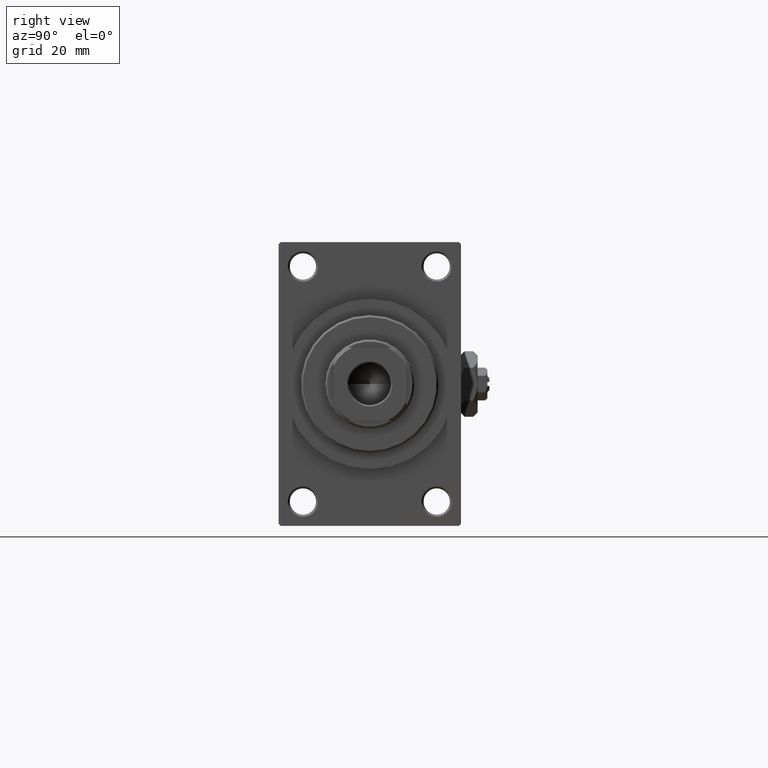
[diagram: clean part render]
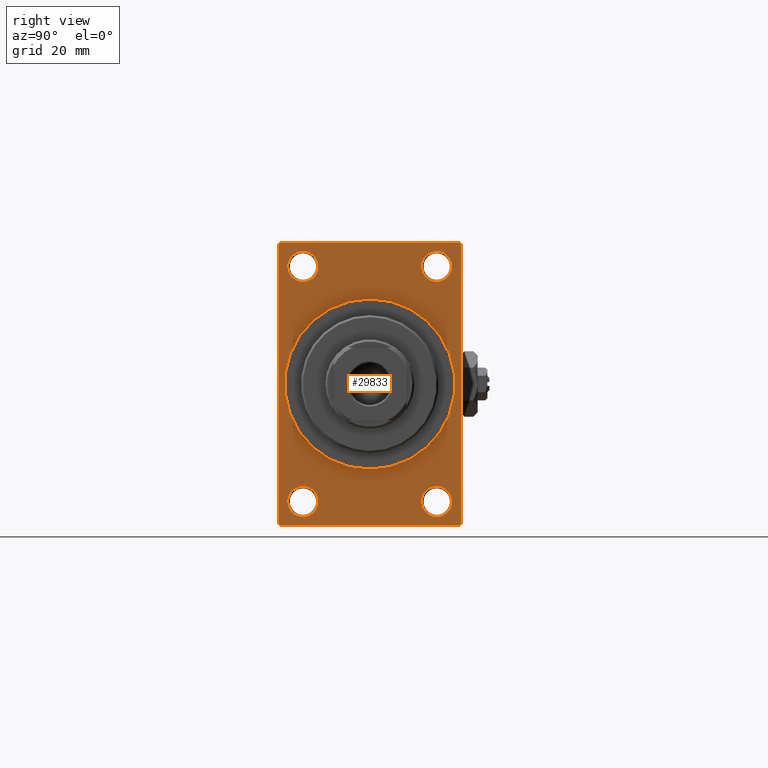
[diagram: same view with one face highlighted and labeled with its STEP entity id]
A machine part, right view. The second image highlights one B-rep face of the part: STEP entity #29833.
In plain terms, the highlighted planar face has unit normal (-1, 0, 0).
Its self-contained STEP definition (entity closure, byte-faithful):
#54 = CARTESIAN_POINT ( 'NONE',  ( 113.0000000000000142, -16.50000000000000000, -32.75000000000007105 ) ) ;
#1103 = LINE ( 'NONE', #8499, #28420 ) ;
#1828 = DIRECTION ( 'NONE',  ( 1.000000000000000000, 0.000000000000000000, 0.000000000000000000 ) ) ;
#2083 = ORIENTED_EDGE ( 'NONE', *, *, #37617, .T. ) ;
#2571 = EDGE_CURVE ( 'NONE', #26185, #15799, #22630, .T. ) ;
#3128 = DIRECTION ( 'NONE',  ( 0.000000000000000000, 0.000000000000000000, 1.000000000000000000 ) ) ;
#3483 = VERTEX_POINT ( 'NONE', #27181 ) ;
#3810 = AXIS2_PLACEMENT_3D ( 'NONE', #35055, #31342, #3128 ) ;
#4044 = CARTESIAN_POINT ( 'NONE',  ( 113.0000000000000142, 16.50000000000000000, -28.99999999999999289 ) ) ;
#4666 = EDGE_CURVE ( 'NONE', #21933, #42696, #42468, .T. ) ;
#4974 = EDGE_CURVE ( 'NONE', #25891, #12410, #40882, .T. ) ;
#5018 = DIRECTION ( 'NONE',  ( -1.000000000000000000, -0.000000000000000000, -0.000000000000000000 ) ) ;
#5211 = CARTESIAN_POINT ( 'NONE',  ( 113.0000000000000142, 16.50000000000000000, -28.99999999999999289 ) ) ;
#5325 = ORIENTED_EDGE ( 'NONE', *, *, #2571, .F. ) ;
#5639 = DIRECTION ( 'NONE',  ( 0.000000000000000000, -1.000000000000000000, 0.000000000000000000 ) ) ;
#6078 = CARTESIAN_POINT ( 'NONE',  ( 113.0000000000000142, 2.571758278209441661E-15, -21.00000000000000000 ) ) ;
#6099 = EDGE_CURVE ( 'NONE', #42696, #21933, #38543, .T. ) ;
#7235 = ORIENTED_EDGE ( 'NONE', *, *, #41849, .T. ) ;
#7708 = EDGE_CURVE ( 'NONE', #3483, #40909, #19552, .T. ) ;
#8270 = LINE ( 'NONE', #45104, #43570 ) ;
#8499 = CARTESIAN_POINT ( 'NONE',  ( 113.0000000000000142, 22.49999999999999645, -34.50000000000000000 ) ) ;
#8795 = CARTESIAN_POINT ( 'NONE',  ( 113.0000000000000142, -16.50000000000000000, -28.99999999999999289 ) ) ;
#8837 = EDGE_CURVE ( 'NONE', #21409, #28181, #28895, .T. ) ;
#9337 = AXIS2_PLACEMENT_3D ( 'NONE', #28458, #43560, #24771 ) ;
#9624 = FACE_BOUND ( 'NONE', #47863, .T. ) ;
#9846 = DIRECTION ( 'NONE',  ( 0.000000000000000000, 0.000000000000000000, 1.000000000000000000 ) ) ;
#10346 = VECTOR ( 'NONE', #11052, 1000.000000000000114 ) ;
#10484 = VECTOR ( 'NONE', #5639, 1000.000000000000000 ) ;
#11052 = DIRECTION ( 'NONE',  ( -0.000000000000000000, -0.7071067811865474617, -0.7071067811865474617 ) ) ;
#11243 = DIRECTION ( 'NONE',  ( 0.000000000000000000, 0.000000000000000000, -1.000000000000000000 ) ) ;
#11634 = CARTESIAN_POINT ( 'NONE',  ( 113.0000000000000142, -22.50000000000000355, -34.49999999999997158 ) ) ;
#12080 = AXIS2_PLACEMENT_3D ( 'NONE', #5211, #27915, #23989 ) ;
#12410 = VERTEX_POINT ( 'NONE', #45703 ) ;
#13106 = DIRECTION ( 'NONE',  ( 0.000000000000000000, 0.7071067811865376918, -0.7071067811865574537 ) ) ;
#13438 = EDGE_CURVE ( 'NONE', #40145, #23898, #1103, .T. ) ;
#13790 = CARTESIAN_POINT ( 'NONE',  ( 113.0000000000000142, 16.50000000000000000, 29.00000000000000355 ) ) ;
#13995 = ORIENTED_EDGE ( 'NONE', *, *, #7708, .T. ) ;
#14139 = ORIENTED_EDGE ( 'NONE', *, *, #23434, .T. ) ;
#14158 = VERTEX_POINT ( 'NONE', #26122 ) ;
#14238 = ORIENTED_EDGE ( 'NONE', *, *, #22991, .T. ) ;
#14290 = DIRECTION ( 'NONE',  ( 0.000000000000000000, 0.000000000000000000, 1.000000000000000000 ) ) ;
#14376 = AXIS2_PLACEMENT_3D ( 'NONE', #47666, #25164, #14290 ) ;
#14751 = CARTESIAN_POINT ( 'NONE',  ( 113.0000000000000142, -22.50000000000000355, 34.50000000000000000 ) ) ;
#14872 = CARTESIAN_POINT ( 'NONE',  ( 113.0000000000000142, -16.50000000000000000, 32.75000000000007816 ) ) ;
#15600 = AXIS2_PLACEMENT_3D ( 'NONE', #42081, #5018, #30952 ) ;
#15668 = EDGE_CURVE ( 'NONE', #36716, #25115, #48606, .T. ) ;
#15799 = VERTEX_POINT ( 'NONE', #6078 ) ;
#16119 = EDGE_CURVE ( 'NONE', #15799, #26185, #45872, .T. ) ;
#16131 = CARTESIAN_POINT ( 'NONE',  ( 113.0000000000000142, 22.49999999999999645, -34.50000000000000000 ) ) ;
#16897 = DIRECTION ( 'NONE',  ( 0.000000000000000000, 0.000000000000000000, -1.000000000000000000 ) ) ;
#17013 = DIRECTION ( 'NONE',  ( -1.000000000000000000, -0.000000000000000000, -0.000000000000000000 ) ) ;
#17229 = CARTESIAN_POINT ( 'NONE',  ( 113.0000000000000142, 21.99999999999999645, 35.00000000000000000 ) ) ;
#17628 = EDGE_CURVE ( 'NONE', #14158, #20694, #24630, .T. ) ;
#18397 = CIRCLE ( 'NONE', #12080, 3.750000000000076383 ) ;
#18860 = DIRECTION ( 'NONE',  ( -1.000000000000000000, -0.000000000000000000, -0.000000000000000000 ) ) ;
#19533 = ORIENTED_EDGE ( 'NONE', *, *, #38532, .F. ) ;
#19552 = CIRCLE ( 'NONE', #15600, 3.750000000000076383 ) ;
#19554 = AXIS2_PLACEMENT_3D ( 'NONE', #4044, #18860, #22332 ) ;
#19715 = CARTESIAN_POINT ( 'NONE',  ( 113.0000000000000142, 0.000000000000000000, 0.000000000000000000 ) ) ;
#20020 = FACE_OUTER_BOUND ( 'NONE', #31333, .T. ) ;
#20275 = CARTESIAN_POINT ( 'NONE',  ( 113.0000000000000142, 0.000000000000000000, 21.00000000000000000 ) ) ;
#20694 = VERTEX_POINT ( 'NONE', #31329 ) ;
#20740 = FACE_BOUND ( 'NONE', #45653, .T. ) ;
#21075 = AXIS2_PLACEMENT_3D ( 'NONE', #19715, #34787, #38496 ) ;
#21409 = VERTEX_POINT ( 'NONE', #11634 ) ;
#21933 = VERTEX_POINT ( 'NONE', #35644 ) ;
#22332 = DIRECTION ( 'NONE',  ( 0.000000000000000000, 0.000000000000000000, 1.000000000000000000 ) ) ;
#22406 = VECTOR ( 'NONE', #42276, 1000.000000000000114 ) ;
#22630 = CIRCLE ( 'NONE', #21075, 21.00000000000000000 ) ;
#22672 = EDGE_LOOP ( 'NONE', ( #14238, #33873 ) ) ;
#22991 = EDGE_CURVE ( 'NONE', #12410, #25891, #18397, .T. ) ;
#22995 = LINE ( 'NONE', #45491, #22406 ) ;
#23434 = EDGE_CURVE ( 'NONE', #40909, #3483, #26275, .T. ) ;
#23719 = FACE_BOUND ( 'NONE', #22672, .T. ) ;
#23871 = VECTOR ( 'NONE', #31131, 1000.000000000000000 ) ;
#23898 = VERTEX_POINT ( 'NONE', #16131 ) ;
#23989 = DIRECTION ( 'NONE',  ( 0.000000000000000000, 0.000000000000000000, 1.000000000000000000 ) ) ;
#24075 = ORIENTED_EDGE ( 'NONE', *, *, #17628, .T. ) ;
#24350 = CARTESIAN_POINT ( 'NONE',  ( 113.0000000000000142, -21.99999999999998934, 35.00000000000000000 ) ) ;
#24546 = CARTESIAN_POINT ( 'NONE',  ( 113.0000000000000142, 0.000000000000000000, 0.000000000000000000 ) ) ;
#24630 = CIRCLE ( 'NONE', #14376, 3.750000000000072831 ) ;
#24771 = DIRECTION ( 'NONE',  ( 0.000000000000000000, 0.000000000000000000, 1.000000000000000000 ) ) ;
#25115 = VERTEX_POINT ( 'NONE', #29437 ) ;
#25164 = DIRECTION ( 'NONE',  ( -1.000000000000000000, -0.000000000000000000, -0.000000000000000000 ) ) ;
#25212 = EDGE_CURVE ( 'NONE', #40703, #48575, #22995, .T. ) ;
#25891 = VERTEX_POINT ( 'NONE', #28267 ) ;
#26122 = CARTESIAN_POINT ( 'NONE',  ( 113.0000000000000142, 16.50000000000000000, 25.24999999999993250 ) ) ;
#26185 = VERTEX_POINT ( 'NONE', #20275 ) ;
#26275 = CIRCLE ( 'NONE', #35736, 3.750000000000076383 ) ;
#26711 = CARTESIAN_POINT ( 'NONE',  ( 113.0000000000000142, -22.50000000000000355, 35.00000000000000000 ) ) ;
#27181 = CARTESIAN_POINT ( 'NONE',  ( 113.0000000000000142, -16.50000000000000000, -25.24999999999992184 ) ) ;
#27200 = LINE ( 'NONE', #26711, #43683 ) ;
#27440 = VECTOR ( 'NONE', #13106, 999.9999999999998863 ) ;
#27445 = CARTESIAN_POINT ( 'NONE',  ( 113.0000000000000142, 22.49999999999999645, 34.50000000000000000 ) ) ;
#27892 = DIRECTION ( 'NONE',  ( -0.000000000000000000, 0.000000000000000000, 1.000000000000000000 ) ) ;
#27915 = DIRECTION ( 'NONE',  ( -1.000000000000000000, -0.000000000000000000, -0.000000000000000000 ) ) ;
#28181 = VERTEX_POINT ( 'NONE', #41946 ) ;
#28267 = CARTESIAN_POINT ( 'NONE',  ( 113.0000000000000142, 16.50000000000000000, -25.24999999999992184 ) ) ;
#28420 = VECTOR ( 'NONE', #38650, 1000.000000000000114 ) ;
#28458 = CARTESIAN_POINT ( 'NONE',  ( 113.0000000000000142, -16.50000000000000000, 29.00000000000000711 ) ) ;
#28895 = LINE ( 'NONE', #29140, #27440 ) ;
#29140 = CARTESIAN_POINT ( 'NONE',  ( 113.0000000000000142, -21.99999999999998934, -35.00000000000000000 ) ) ;
#29437 = CARTESIAN_POINT ( 'NONE',  ( 113.0000000000000142, -22.50000000000000355, 34.50000000000000000 ) ) ;
#29833 = ADVANCED_FACE ( 'NONE', ( #9624, #38798, #23719, #35088, #20740, #20020 ), #31866, .F. ) ;
#30806 = ORIENTED_EDGE ( 'NONE', *, *, #16119, .F. ) ;
#30890 = AXIS2_PLACEMENT_3D ( 'NONE', #13790, #17013, #9846 ) ;
#30952 = DIRECTION ( 'NONE',  ( 0.000000000000000000, 0.000000000000000000, 1.000000000000000000 ) ) ;
#31131 = DIRECTION ( 'NONE',  ( 0.000000000000000000, -1.000000000000000000, 0.000000000000000000 ) ) ;
#31329 = CARTESIAN_POINT ( 'NONE',  ( 113.0000000000000142, 16.50000000000000000, 32.75000000000007816 ) ) ;
#31333 = EDGE_LOOP ( 'NONE', ( #7235, #32615, #32119, #33738, #19533, #46636, #47224, #48469 ) ) ;
#31342 = DIRECTION ( 'NONE',  ( -1.000000000000000000, -0.000000000000000000, -0.000000000000000000 ) ) ;
#31866 = PLANE ( 'NONE',  #33103 ) ;
#31975 = ORIENTED_EDGE ( 'NONE', *, *, #6099, .T. ) ;
#32119 = ORIENTED_EDGE ( 'NONE', *, *, #41135, .F. ) ;
#32615 = ORIENTED_EDGE ( 'NONE', *, *, #8837, .T. ) ;
#33103 = AXIS2_PLACEMENT_3D ( 'NONE', #43227, #42749, #27892 ) ;
#33334 = CARTESIAN_POINT ( 'NONE',  ( 113.0000000000000142, 21.99999999999999645, -35.00000000000000000 ) ) ;
#33738 = ORIENTED_EDGE ( 'NONE', *, *, #13438, .T. ) ;
#33873 = ORIENTED_EDGE ( 'NONE', *, *, #4974, .T. ) ;
#34055 = AXIS2_PLACEMENT_3D ( 'NONE', #24546, #1828, #16897 ) ;
#34787 = DIRECTION ( 'NONE',  ( 1.000000000000000000, 0.000000000000000000, 0.000000000000000000 ) ) ;
#35055 = CARTESIAN_POINT ( 'NONE',  ( 113.0000000000000142, -16.50000000000000000, 29.00000000000000711 ) ) ;
#35088 = FACE_BOUND ( 'NONE', #44861, .T. ) ;
#35569 = CARTESIAN_POINT ( 'NONE',  ( 113.0000000000000142, 22.49999999999999645, 35.00000000000000000 ) ) ;
#35644 = CARTESIAN_POINT ( 'NONE',  ( 113.0000000000000142, -16.50000000000000000, 25.24999999999993960 ) ) ;
#35736 = AXIS2_PLACEMENT_3D ( 'NONE', #8795, #38704, #46351 ) ;
#36522 = LINE ( 'NONE', #39496, #10484 ) ;
#36716 = VERTEX_POINT ( 'NONE', #24350 ) ;
#37617 = EDGE_CURVE ( 'NONE', #20694, #14158, #37997, .T. ) ;
#37997 = CIRCLE ( 'NONE', #30890, 3.750000000000072831 ) ;
#38255 = EDGE_LOOP ( 'NONE', ( #14139, #13995 ) ) ;
#38496 = DIRECTION ( 'NONE',  ( 0.000000000000000000, 0.000000000000000000, -1.000000000000000000 ) ) ;
#38532 = EDGE_CURVE ( 'NONE', #40703, #23898, #8270, .T. ) ;
#38543 = CIRCLE ( 'NONE', #9337, 3.750000000000069278 ) ;
#38650 = DIRECTION ( 'NONE',  ( -0.000000000000000000, 0.7071067811865474617, 0.7071067811865474617 ) ) ;
#38704 = DIRECTION ( 'NONE',  ( -1.000000000000000000, -0.000000000000000000, -0.000000000000000000 ) ) ;
#38798 = FACE_BOUND ( 'NONE', #38255, .T. ) ;
#39496 = CARTESIAN_POINT ( 'NONE',  ( 113.0000000000000142, 22.49999999999999645, -35.00000000000000000 ) ) ;
#39996 = EDGE_CURVE ( 'NONE', #48575, #36716, #46209, .T. ) ;
#40145 = VERTEX_POINT ( 'NONE', #33334 ) ;
#40703 = VERTEX_POINT ( 'NONE', #27445 ) ;
#40882 = CIRCLE ( 'NONE', #19554, 3.750000000000076383 ) ;
#40909 = VERTEX_POINT ( 'NONE', #54 ) ;
#41135 = EDGE_CURVE ( 'NONE', #40145, #28181, #36522, .T. ) ;
#41849 = EDGE_CURVE ( 'NONE', #25115, #21409, #27200, .T. ) ;
#41946 = CARTESIAN_POINT ( 'NONE',  ( 113.0000000000000142, -21.99999999999997513, -35.00000000000000000 ) ) ;
#42081 = CARTESIAN_POINT ( 'NONE',  ( 113.0000000000000142, -16.50000000000000000, -28.99999999999999289 ) ) ;
#42276 = DIRECTION ( 'NONE',  ( 0.000000000000000000, -0.7071067811865474617, 0.7071067811865474617 ) ) ;
#42468 = CIRCLE ( 'NONE', #3810, 3.750000000000069278 ) ;
#42696 = VERTEX_POINT ( 'NONE', #14872 ) ;
#42749 = DIRECTION ( 'NONE',  ( -1.000000000000000000, 0.000000000000000000, -0.000000000000000000 ) ) ;
#43227 = CARTESIAN_POINT ( 'NONE',  ( 113.0000000000000142, 0.000000000000000000, 0.000000000000000000 ) ) ;
#43560 = DIRECTION ( 'NONE',  ( -1.000000000000000000, -0.000000000000000000, -0.000000000000000000 ) ) ;
#43570 = VECTOR ( 'NONE', #11243, 1000.000000000000000 ) ;
#43591 = ORIENTED_EDGE ( 'NONE', *, *, #4666, .T. ) ;
#43683 = VECTOR ( 'NONE', #45746, 1000.000000000000000 ) ;
#44861 = EDGE_LOOP ( 'NONE', ( #24075, #2083 ) ) ;
#45104 = CARTESIAN_POINT ( 'NONE',  ( 113.0000000000000142, 22.49999999999999645, 35.00000000000000000 ) ) ;
#45491 = CARTESIAN_POINT ( 'NONE',  ( 113.0000000000000142, 21.99999999999999645, 35.00000000000000000 ) ) ;
#45653 = EDGE_LOOP ( 'NONE', ( #5325, #30806 ) ) ;
#45703 = CARTESIAN_POINT ( 'NONE',  ( 113.0000000000000142, 16.50000000000000000, -32.75000000000007105 ) ) ;
#45746 = DIRECTION ( 'NONE',  ( 0.000000000000000000, 0.000000000000000000, -1.000000000000000000 ) ) ;
#45872 = CIRCLE ( 'NONE', #34055, 21.00000000000000000 ) ;
#46209 = LINE ( 'NONE', #35569, #23871 ) ;
#46351 = DIRECTION ( 'NONE',  ( 0.000000000000000000, 0.000000000000000000, 1.000000000000000000 ) ) ;
#46636 = ORIENTED_EDGE ( 'NONE', *, *, #25212, .T. ) ;
#47224 = ORIENTED_EDGE ( 'NONE', *, *, #39996, .T. ) ;
#47666 = CARTESIAN_POINT ( 'NONE',  ( 113.0000000000000142, 16.50000000000000000, 29.00000000000000355 ) ) ;
#47863 = EDGE_LOOP ( 'NONE', ( #43591, #31975 ) ) ;
#48469 = ORIENTED_EDGE ( 'NONE', *, *, #15668, .T. ) ;
#48575 = VERTEX_POINT ( 'NONE', #17229 ) ;
#48606 = LINE ( 'NONE', #14751, #10346 ) ;